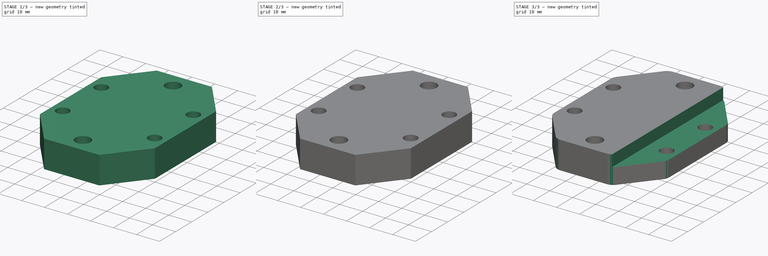
[diagram: build sequence overview — one tinted view per stage of 3, left to right]
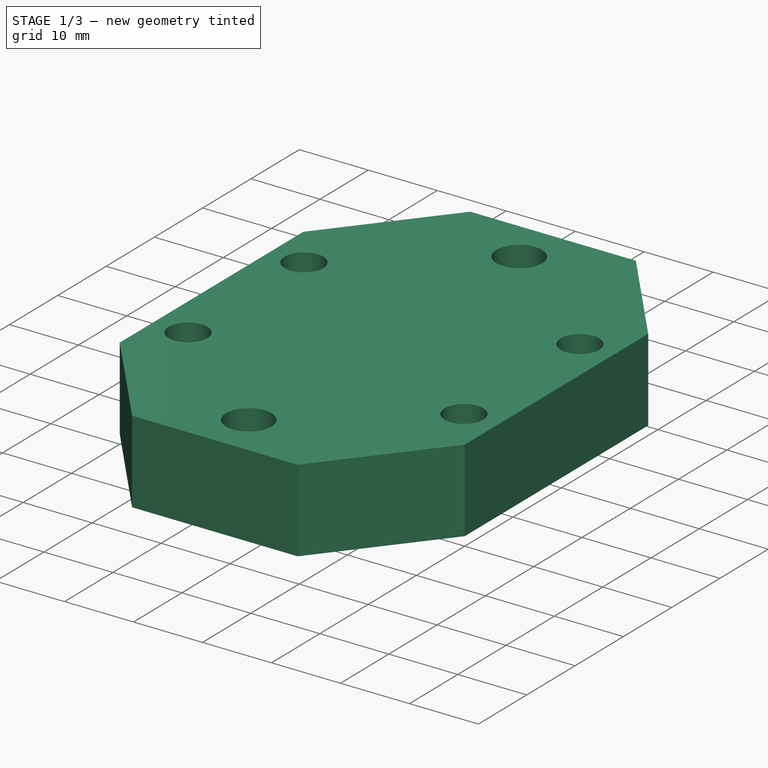
[diagram: stage 1 of 3 — iso view after this stage's code; geometry added in this stage tinted green]
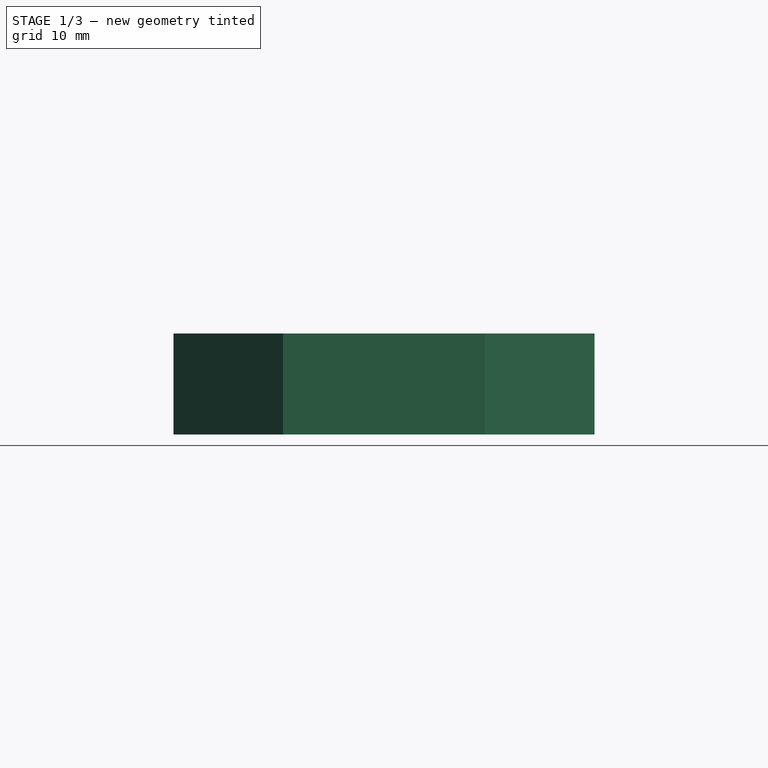
[diagram: stage 1 of 3 — front view after this stage's code; geometry added in this stage tinted green]
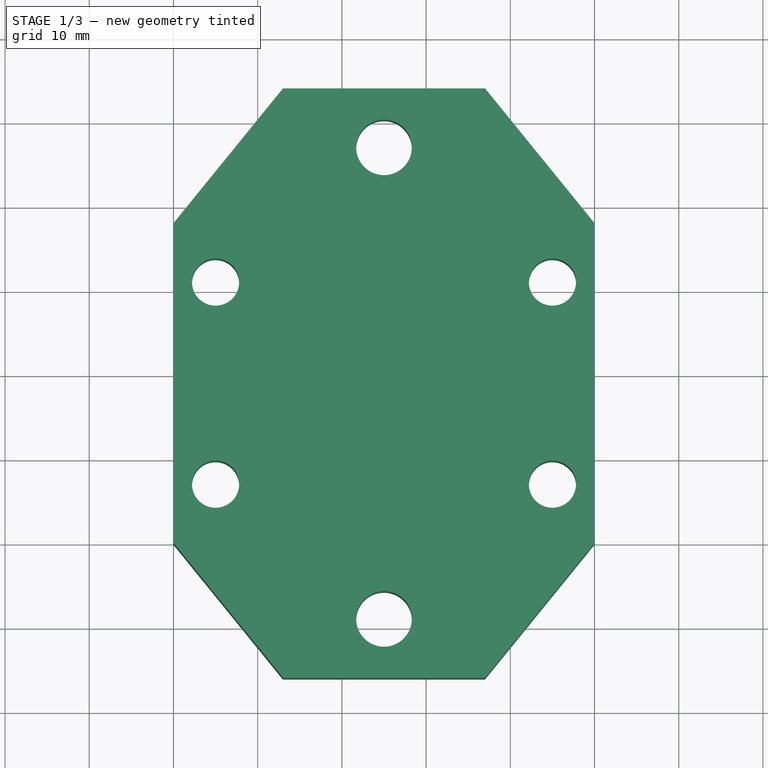
[diagram: stage 1 of 3 — top view after this stage's code; geometry added in this stage tinted green]
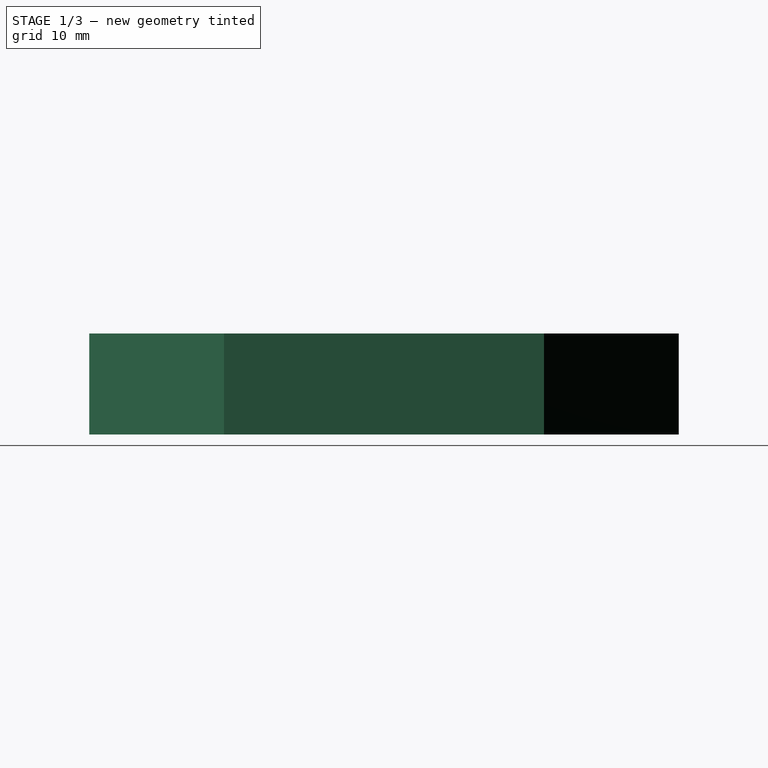
[diagram: stage 1 of 3 — right view after this stage's code; geometry added in this stage tinted green]
FCSTD DOCUMENT  (FreeCAD 1.0R39109 (Git))
Label: DSG16H_to_SH25
License: All rights reserved
LicenseURL: https://en.wikipedia.org/wiki/All_rights_reserved
objects: Sketcher::SketchObject×4, PartDesign::Pocket×3, PartDesign::Pad×1, PartDesign::Fillet×1, PartDesign::Body×1
note: 24 computed .brp shape members not serialized (recipe doc carries the construction recipe); baked Part::Feature solids carry a one-line shape summary decoded from their .brp

FEATURE [Sketcher::SketchObject] Sketch
  ArcFitTolerance = 1e-06
  AttachmentSupport = -> [XY_Plane]
  FullyConstrained = true
  MakeInternals = false
  MapMode = 5
  sketch-geometry (19):
    g0: LineSegment StartX=50 StartY=0 StartZ=0 EndX=50 EndY=38 EndZ=0
    g1: LineSegment StartX=0 StartY=38 StartZ=0 EndX=0 EndY=0 EndZ=0
    g2: LineSegment [constr] StartX=5 StartY=7 StartZ=0 EndX=45 EndY=7 EndZ=0
    g3: LineSegment [constr] StartX=45 StartY=7 StartZ=0 EndX=45 EndY=31 EndZ=0
    g4: LineSegment [constr] StartX=45 StartY=31 StartZ=0 EndX=5 EndY=31 EndZ=0
    g5: LineSegment [constr] StartX=5 StartY=31 StartZ=0 EndX=5 EndY=7 EndZ=0
    g6: LineSegment [constr] StartX=0 StartY=0 StartZ=0 EndX=5 EndY=7 EndZ=0
    g7: LineSegment [constr] StartX=5 StartY=31 StartZ=0 EndX=-9e-16 EndY=38 EndZ=0
    g8: LineSegment [constr] StartX=45 StartY=31 StartZ=0 EndX=50 EndY=38 EndZ=0
    g9: Circle CenterX=5 CenterY=31 CenterZ=0 NormalX=0 NormalY=0 NormalZ=1 AngleXU=0 Radius=2.8
    g10: Circle CenterX=45 CenterY=31 CenterZ=0 NormalX=0 NormalY=0 NormalZ=1 AngleXU=0 Radius=2.8
    g11: Circle CenterX=45 CenterY=7 CenterZ=0 NormalX=0 NormalY=0 NormalZ=1 AngleXU=0 Radius=2.8
    g12: Circle CenterX=5 CenterY=7 CenterZ=0 NormalX=0 NormalY=0 NormalZ=1 AngleXU=0 Radius=2.8
    g13: LineSegment StartX=0 StartY=38 StartZ=0 EndX=13 EndY=54 EndZ=0
    g14: LineSegment StartX=13 StartY=54 StartZ=0 EndX=37 EndY=54 EndZ=0
    g15: LineSegment StartX=37 StartY=54 StartZ=0 EndX=50 EndY=38 EndZ=0
    g16: LineSegment StartX=50 StartY=0 StartZ=0 EndX=37 EndY=-16 EndZ=0
    g17: LineSegment StartX=37 StartY=-16 StartZ=0 EndX=13 EndY=-16 EndZ=0
    g18: LineSegment StartX=13 StartY=-16 StartZ=0 EndX=0 EndY=1.8e-15 EndZ=0
  constraints (49):
    c: Vertical(g0)
    c: Vertical(g1)
    c: Distance(g0,g1) = 50
    c: Distance(g1,g1) = 38
    c: Coincident(g2,g3)
    c: Coincident(g3,g4)
    c: Coincident(g4,g5)
    c: Coincident(g5,g2)
    c: Horizontal(g2)
    c: Horizontal(g4)
    c: Vertical(g3)
    c: Vertical(g5)
    c: Distance(g3,g5) = 40
    c: Distance(g2,g4) = 24
    c: Coincident(g6,g2)
    c: Coincident(g7,g4)
    c: Coincident(g8,g3)
    c: Coincident(g8,g0)
    c: Equal(g8,g7)
    c: Equal(g7,g6)
    c: Coincident(g9,g4)
    c: Coincident(g10,g3)
    c: Coincident(g11,g2)
    c: Coincident(g12,g2)
    c: Equal(g12,g9)
    c: Equal(g12,g11)
    c: Equal(g12,g10)
    c: Diameter(g12) = 5.6
    c: Equal(g0,g1)
    c: Coincident(g1,g-1)
    c: Coincident(g6,g1)
    c: PointOnObject(g0,g-1)
    c: Coincident(g7,g1)
    c: Coincident(g13,g1)
    c: Coincident(g14,g13)
    c: Horizontal(g14)
    c: Coincident(g15,g14)
    c: Coincident(g15,g0)
    c: Coincident(g16,g0)
    c: Coincident(g17,g16)
    c: Horizontal(g17)
    c: Coincident(g18,g17)
    c: Coincident(g18,g1)
    c: DistanceY(g17,g13) = 70
    c: Equal(g14,g17)
    c: Equal(g13,g15)
    c: Equal(g15,g16)
    c: Equal(g16,g18)
    c: DistanceX(g14,g14) = 24
FEATURE [PartDesign::Pad] Pad
  Direction = (0,0,1)
  Length = 12
  Length2 = 10
  Profile = -> Sketch
  ReferenceAxis = -> Sketch [N_Axis]
  Refine = true
  Suppressed = false
  Type = 0
FEATURE [Sketcher::SketchObject] Sketch001
  ArcFitTolerance = 1e-06
  AttachmentSupport = -> [Pad]
  FullyConstrained = true
  MakeInternals = false
  MapMode = 5
  Placement = pos=(0,0,12) rot=(0,0,1;0rad)
  sketch-geometry (2):
    g0: Circle CenterX=25 CenterY=47 CenterZ=0 NormalX=0 NormalY=0 NormalZ=1 AngleXU=0 Radius=3.3
    g1: Circle CenterX=25 CenterY=-9 CenterZ=0 NormalX=0 NormalY=0 NormalZ=1 AngleXU=0 Radius=3.3
  constraints (6):
    c: DistanceY(g1,g0) = 56
    c: DistanceX(g1) = 25
    c: DistanceX(g1,g0) = 0
    c: DistanceY(g1,g-1) = 9
    c: Equal(g1,g0)
    c: Diameter(g1) = 6.6
FEATURE [PartDesign::Pocket] Pocket
  BaseFeature = -> Pad
  Direction = (0,0,-1)
  Length = 5
  Length2 = 5
  Profile = -> Sketch001
  ReferenceAxis = -> Sketch001 [N_Axis]
  Refine = true
  Suppressed = false
  Type = 1
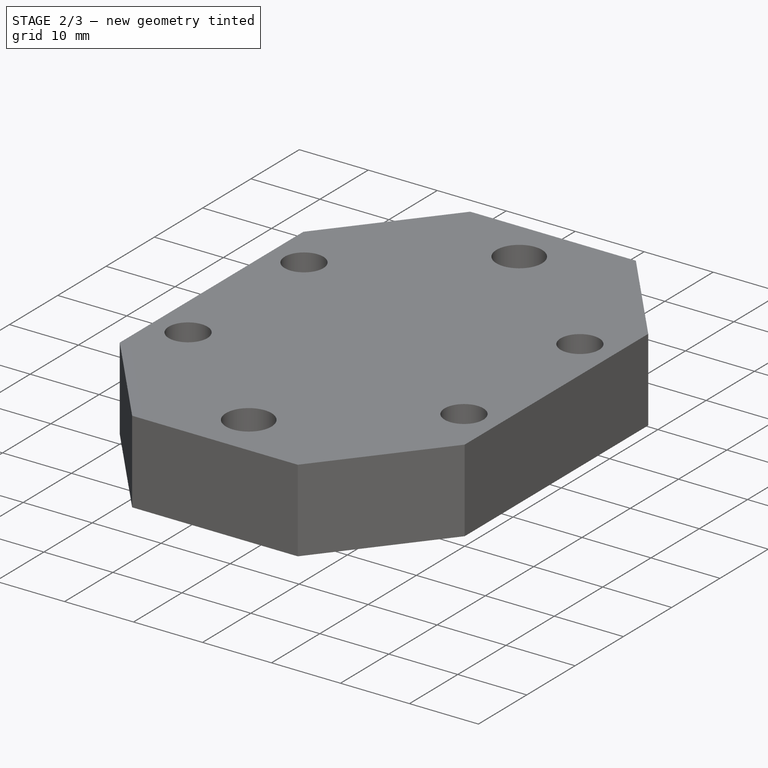
[diagram: stage 2 of 3 — iso view after this stage's code; geometry added in this stage tinted green]
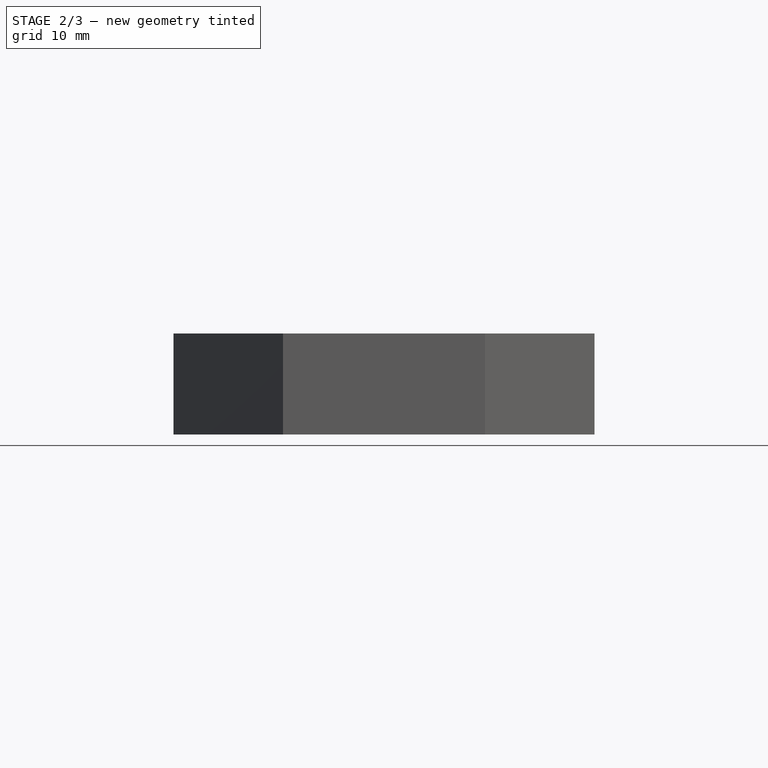
[diagram: stage 2 of 3 — front view after this stage's code; geometry added in this stage tinted green]
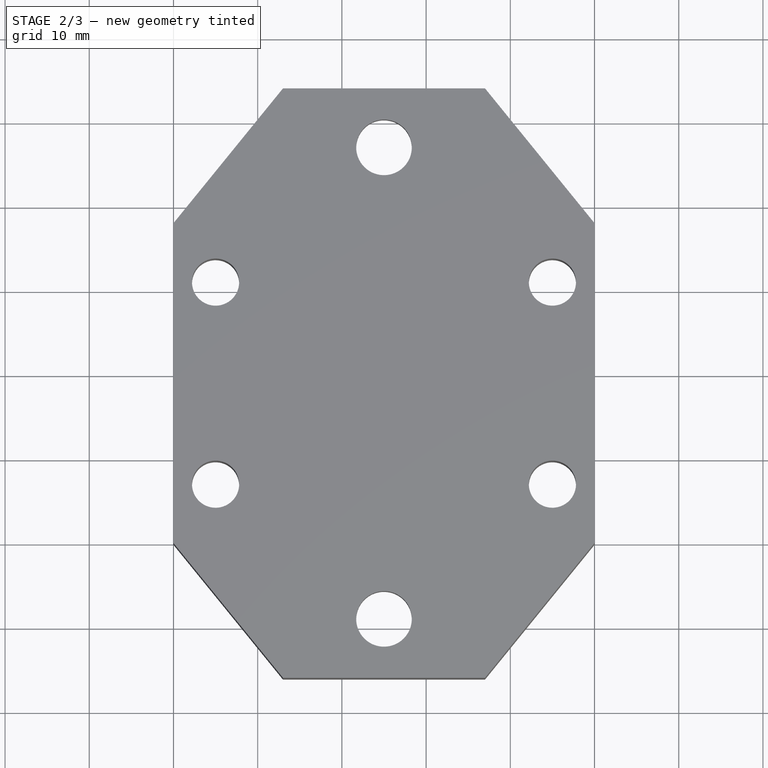
[diagram: stage 2 of 3 — top view after this stage's code; geometry added in this stage tinted green]
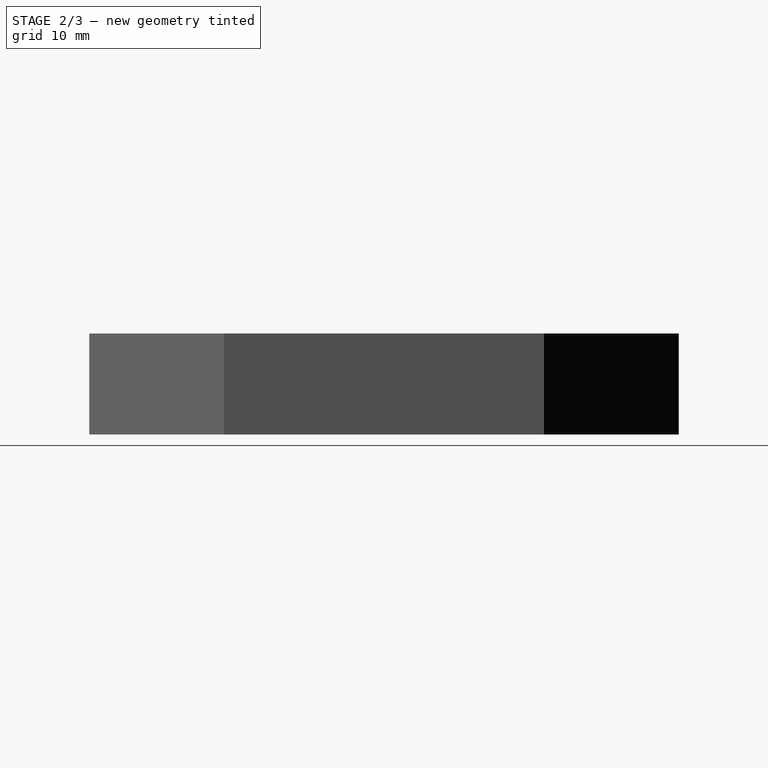
[diagram: stage 2 of 3 — right view after this stage's code; geometry added in this stage tinted green]
FEATURE [Sketcher::SketchObject] Sketch002
  ArcFitTolerance = 1e-06
  AttachmentSupport = -> [Pocket]
  FullyConstrained = true
  MakeInternals = false
  MapMode = 5
  Placement = pos=(0,0,0) rot=(1,0,0;3.14159rad)
  expr: Constraints[0] = Sketch001.Constraints[0]
  expr: Constraints[1] = Sketch001.Constraints[1]
  expr: Constraints[2] = Sketch001.Constraints[2]
  expr: Constraints[5] = Sketch001.Constraints[5]
  sketch-geometry (16):
    g0: Circle [constr] CenterX=25 CenterY=9 CenterZ=0 NormalX=0 NormalY=0 NormalZ=1 AngleXU=0 Radius=3.3
    g1: Circle [constr] CenterX=25 CenterY=-47 CenterZ=0 NormalX=0 NormalY=0 NormalZ=1 AngleXU=0 Radius=3.3
    g2: LineSegment StartX=27.9734 StartY=-52.15 StartZ=0 EndX=30.9467 EndY=-47 EndZ=0
    g3: LineSegment StartX=30.9467 StartY=-47 StartZ=0 EndX=27.9734 EndY=-41.85 EndZ=0
    g4: LineSegment StartX=27.9734 StartY=-41.85 StartZ=0 EndX=22.0266 EndY=-41.85 EndZ=0
    g5: LineSegment StartX=22.0266 StartY=-41.85 StartZ=0 EndX=19.0533 EndY=-47 EndZ=0
    g6: LineSegment StartX=19.0533 StartY=-47 StartZ=0 EndX=22.0266 EndY=-52.15 EndZ=0
    g7: LineSegment StartX=22.0266 StartY=-52.15 StartZ=0 EndX=27.9734 EndY=-52.15 EndZ=0
    g8: Circle [constr] CenterX=25 CenterY=-47 CenterZ=0 NormalX=0 NormalY=0 NormalZ=1 AngleXU=0 Radius=5.94671
    g9: LineSegment StartX=27.9734 StartY=3.85 StartZ=0 EndX=30.9467 EndY=9 EndZ=0
    g10: LineSegment StartX=30.9467 StartY=9 StartZ=0 EndX=27.9734 EndY=14.15 EndZ=0
    g11: LineSegment StartX=27.9734 StartY=14.15 StartZ=0 EndX=22.0266 EndY=14.15 EndZ=0
    g12: LineSegment StartX=22.0266 StartY=14.15 StartZ=0 EndX=19.0533 EndY=9 EndZ=0
    g13: LineSegment StartX=19.0533 StartY=9 StartZ=0 EndX=22.0266 EndY=3.85 EndZ=0
    g14: LineSegment StartX=22.0266 StartY=3.85 StartZ=0 EndX=27.9734 EndY=3.85 EndZ=0
    g15: Circle [constr] CenterX=25 CenterY=9 CenterZ=0 NormalX=0 NormalY=0 NormalZ=1 AngleXU=0 Radius=5.94671
  constraints (38):
    c: DistanceY(g1,g0) = 56
    c: DistanceX(g1) = 25
    c: DistanceX(g1,g0) = 0
    c: DistanceY(g1,g-1) = 47
    c: Equal(g1,g0)
    c: Diameter(g1) = 6.6
    c: Coincident(g2,g3)
    c: Coincident(g3,g4)
    c: Coincident(g4,g5)
    c: Coincident(g5,g6)
    c: Coincident(g6,g7)
    c: Coincident(g7,g2)
    c: Equal(g2, g3-g7) x5
    c: PointOnObject(g2,g8)
    c: PointOnObject(g3,g8)
    c: PointOnObject(g4,g8)
    c: PointOnObject(g5,g8)
    c: PointOnObject(g6,g8)
    c: PointOnObject(g7,g8)
    c: Coincident(g8,g1)
    c: Distance(g4,g2) = 10.3
    c: Horizontal(g4)
    c: Coincident(g9,g10)
    c: Coincident(g10,g11)
    c: Coincident(g11,g12)
    c: Coincident(g12,g13)
    c: Coincident(g13,g14)
    c: Coincident(g14,g9)
    c: Equal(g9, g10-g14) x5
    c: PointOnObject(g9,g15)
    c: PointOnObject(g10,g15)
    c: PointOnObject(g11,g15)
    c: PointOnObject(g12,g15)
    c: PointOnObject(g13,g15)
    c: PointOnObject(g14,g15)
    c: Coincident(g15,g0)
    c: Horizontal(g11)
    c: Equal(g14,g4)
FEATURE [PartDesign::Pocket] Pocket001
  BaseFeature = -> Pocket
  Direction = (0,0,1)
  Length = 6
  Length2 = 5
  Profile = -> Sketch002
  ReferenceAxis = -> Sketch002 [N_Axis]
  Refine = true
  Suppressed = false
  Type = 0
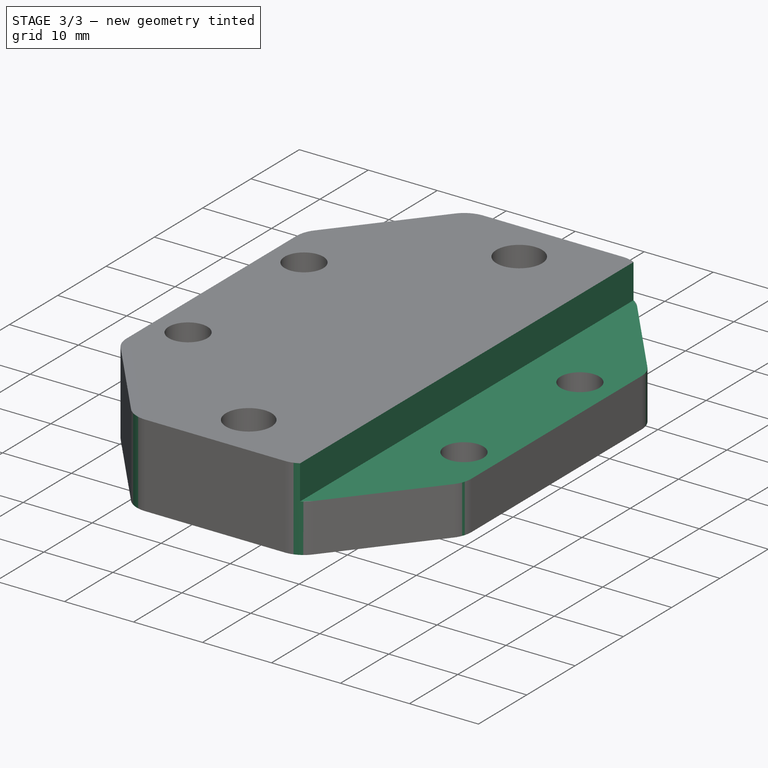
[diagram: stage 3 of 3 — iso view after this stage's code; geometry added in this stage tinted green]
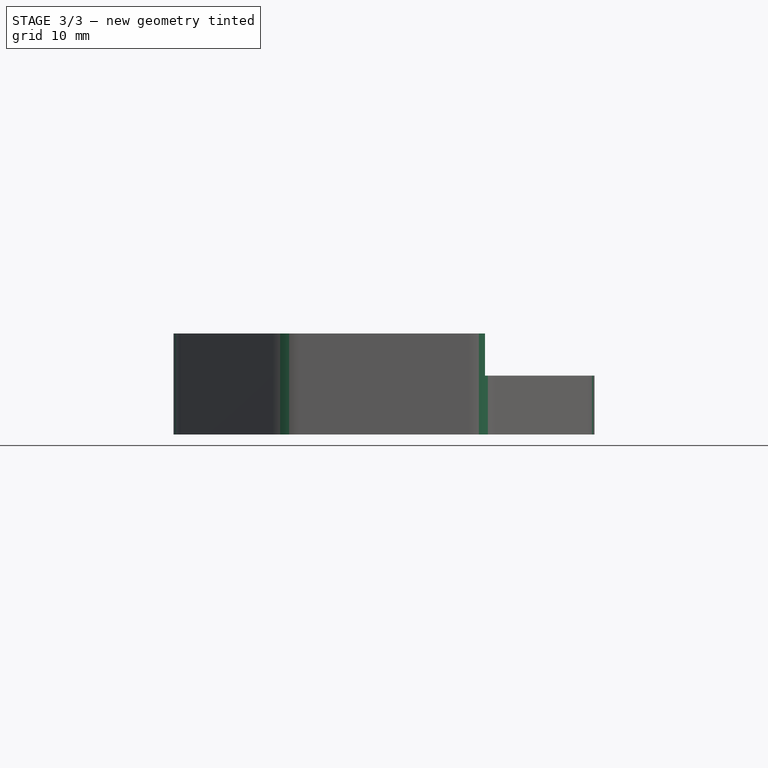
[diagram: stage 3 of 3 — front view after this stage's code; geometry added in this stage tinted green]
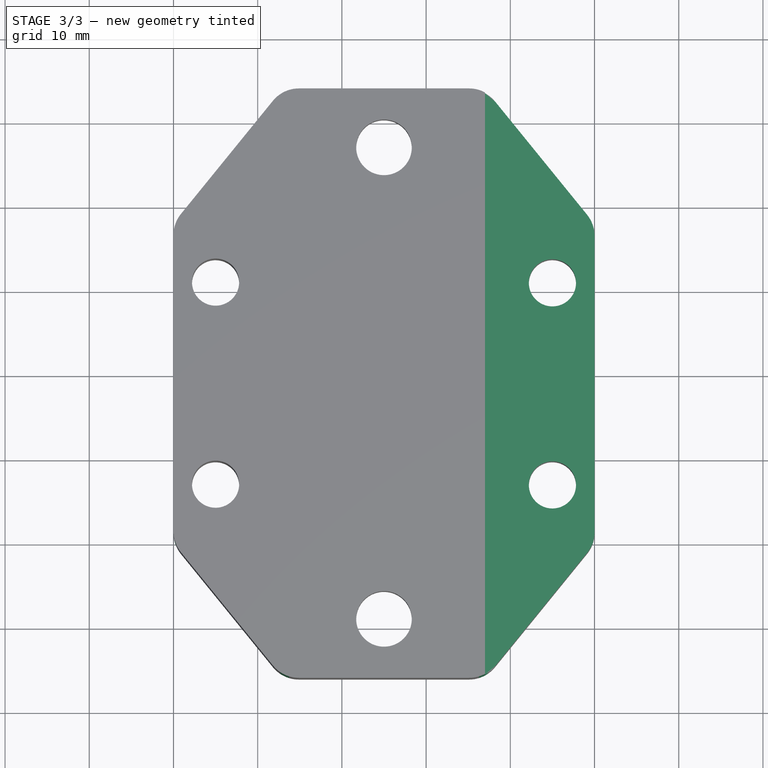
[diagram: stage 3 of 3 — top view after this stage's code; geometry added in this stage tinted green]
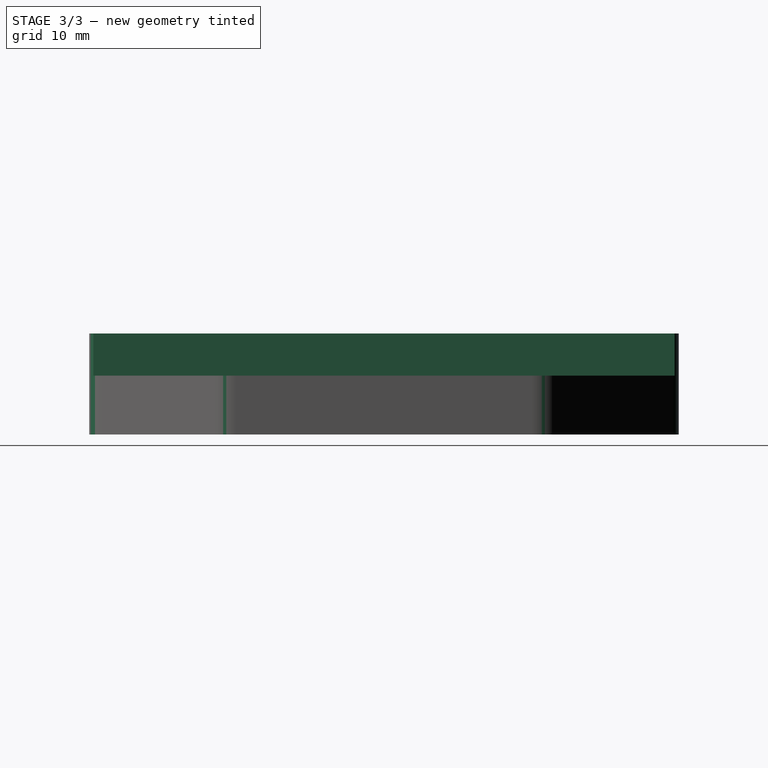
[diagram: stage 3 of 3 — right view after this stage's code; geometry added in this stage tinted green]
FEATURE [PartDesign::Fillet] Fillet
  Base = -> Pocket001 [Edge46,Edge44,Edge8,Edge45,Edge43,Edge5,Edge1,Edge2]
  BaseFeature = -> Pocket001
  Radius = 4
  Refine = true
  SupportTransform = false
  Suppressed = false
  UseAllEdges = false
FEATURE [Sketcher::SketchObject] Sketch003
  ArcFitTolerance = 1e-06
  AttachmentSupport = -> [Fillet]
  FullyConstrained = true
  MakeInternals = false
  MapMode = 5
  Placement = pos=(0,0,12) rot=(0,0,1;0rad)
  sketch-geometry (4):
    g0: LineSegment StartX=37 StartY=54 StartZ=0 EndX=37 EndY=-16 EndZ=0
    g1: LineSegment StartX=37 StartY=-16 StartZ=0 EndX=50 EndY=-16 EndZ=0
    g2: LineSegment StartX=50 StartY=-16 StartZ=0 EndX=50 EndY=54 EndZ=0
    g3: LineSegment StartX=50 StartY=54 StartZ=0 EndX=37 EndY=54 EndZ=0
  constraints (12):
    c: Coincident(g0,g1)
    c: Coincident(g1,g2)
    c: Coincident(g2,g3)
    c: Coincident(g3,g0)
    c: Vertical(g0)
    c: Vertical(g2)
    c: Horizontal(g1)
    c: Horizontal(g3)
    c: Distance(g0,g2) = 13
    c: DistanceX(g1) = 50
    c: DistanceY(g0) = -16
    c: DistanceY(g0,g0) = 70
FEATURE [PartDesign::Pocket] Pocket002
  BaseFeature = -> Fillet
  Direction = (0,0,-1)
  Length = 5
  Length2 = 5
  Profile = -> Sketch003
  ReferenceAxis = -> Sketch003 [N_Axis]
  Refine = true
  Suppressed = false
  Type = 0
FEATURE [PartDesign::Body] Body  label="DSG16H_to_SH25"
  AllowCompound = false
  Group = -> [Sketch,Pad,Sketch001,Pocket,Sketch002,Pocket001,Fillet,Sketch003,Pocket002]
  Origin = -> Origin
  Tip = -> Pocket002
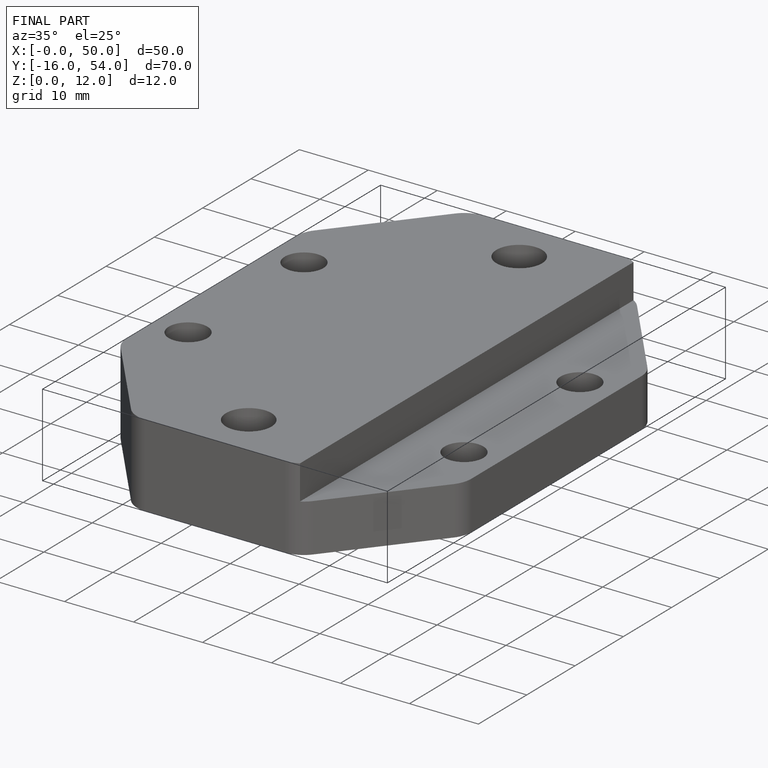
[diagram: finished part — iso view with bounding-box wireframe]
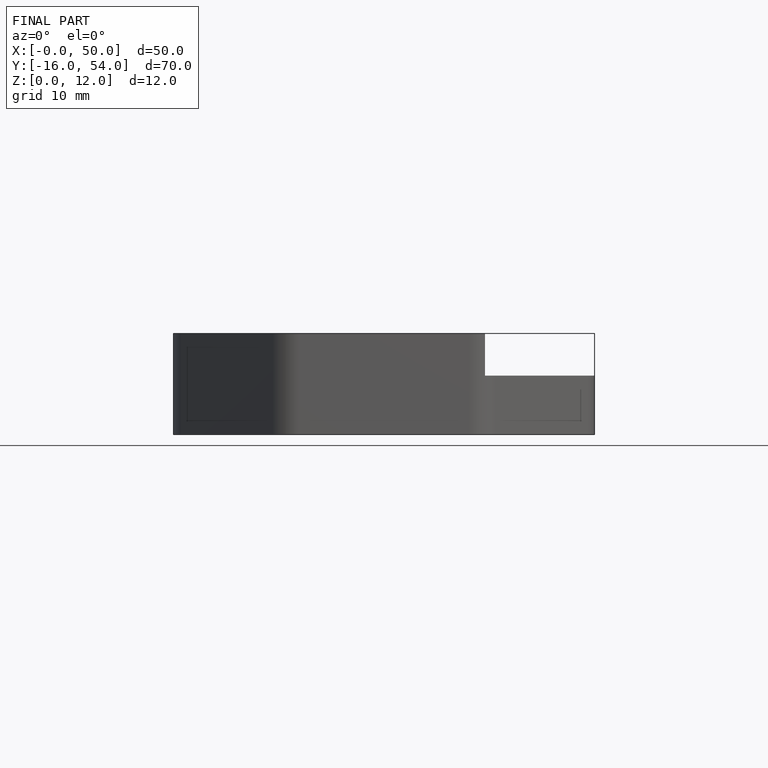
[diagram: finished part — front view with bounding-box wireframe]
